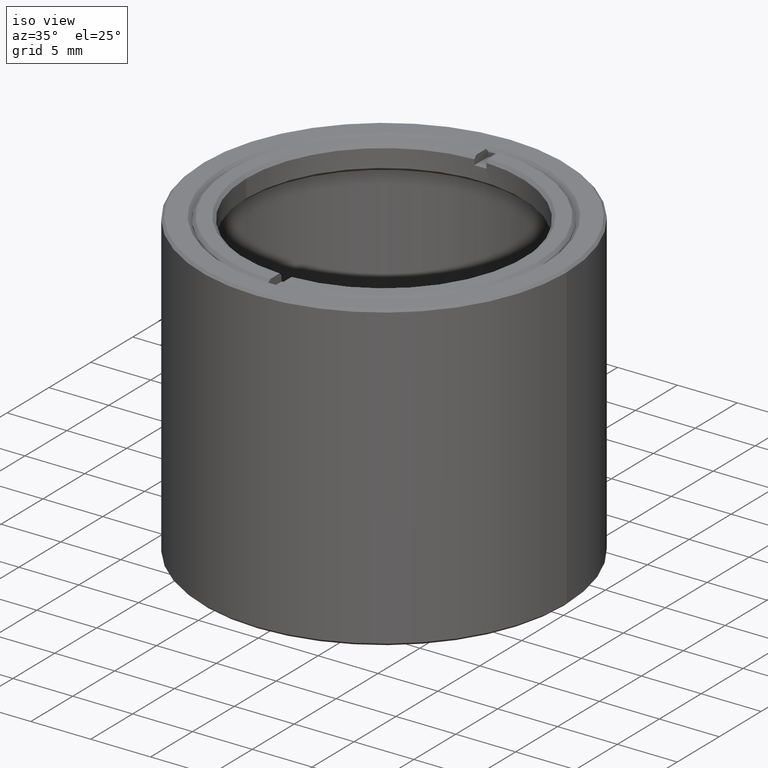
[diagram: clean part render]
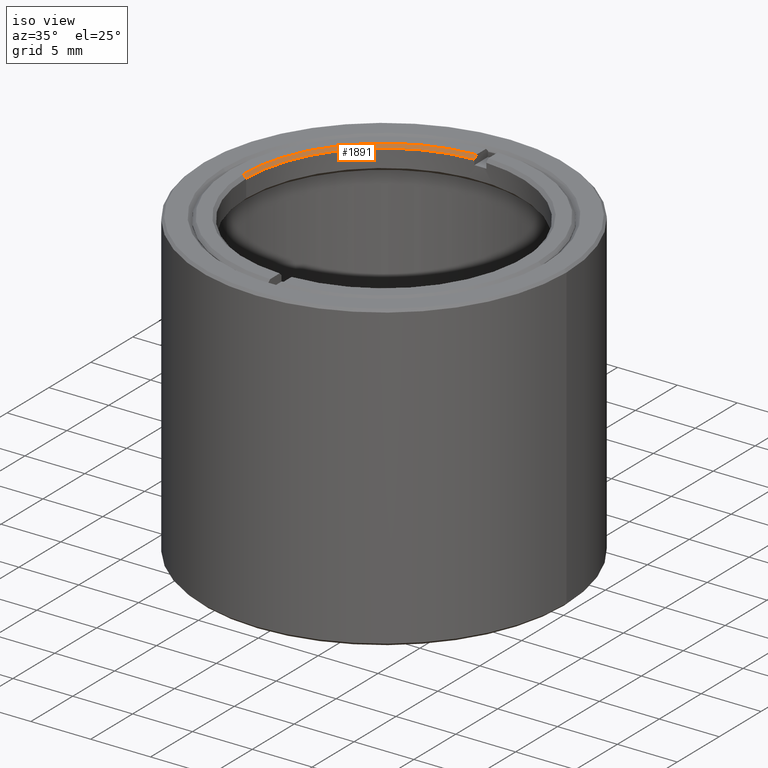
[diagram: same view with one face highlighted and labeled with its STEP entity id]
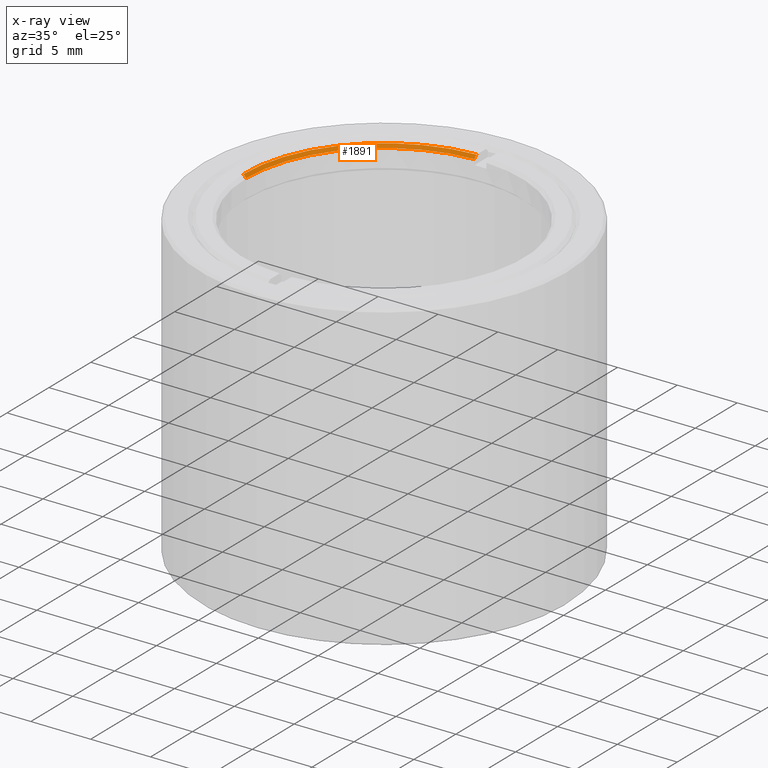
[diagram: x-ray of the same camera — body ghosted, the highlighted face saturated]
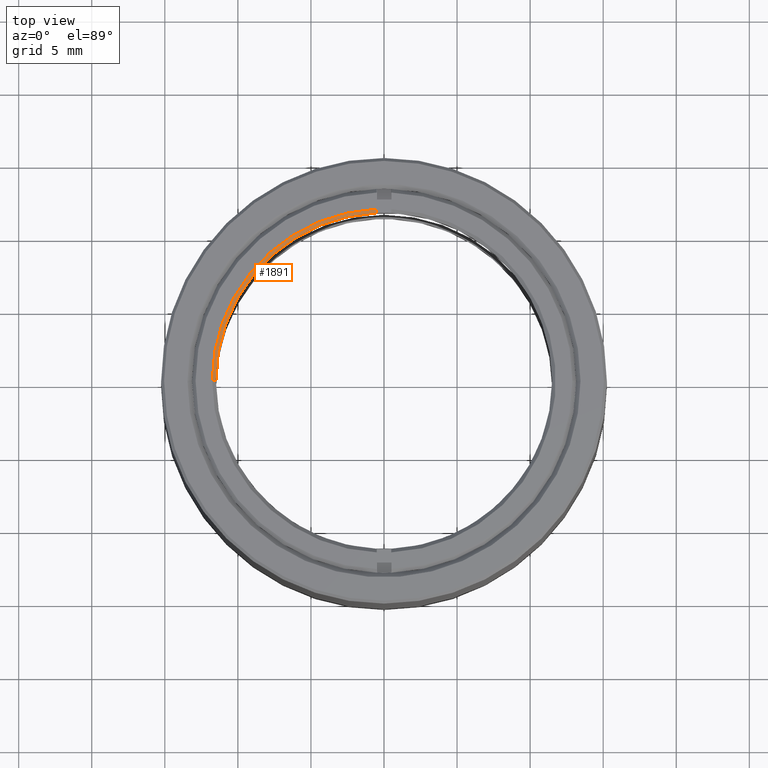
[diagram: same view with one face highlighted and labeled with its STEP entity id]
A machine part, iso view. The second image highlights one B-rep face of the part: STEP entity #1891.
The next image is the same camera in x-ray: the body ghosted, the highlighted face saturated — about 0% of this face is hidden behind the body in this view.
A second angle (top view) of the same face is appended — the face is thin or edge-on in the first view.
In plain terms, the highlighted conical surface has half-angle 45 deg.
Its self-contained STEP definition (entity closure, byte-faithful):
#3 = AXIS2_PLACEMENT_3D ( 'NONE', #1719, #1536, #2480 ) ;
#50 = DIRECTION ( 'NONE',  ( -1.224646799147355179E-16, -7.395570986447007571E-32, 1.000000000000000000 ) ) ;
#153 = DIRECTION ( 'NONE',  ( -0.7071067811865506814, -8.659560562354975999E-17, 0.7071067811865443531 ) ) ;
#175 = ORIENTED_EDGE ( 'NONE', *, *, #1721, .F. ) ;
#176 = VERTEX_POINT ( 'NONE', #1903 ) ;
#210 = EDGE_CURVE ( 'NONE', #176, #450, #213, .T. ) ;
#212 = EDGE_CURVE ( 'NONE', #699, #176, #810, .T. ) ;
#213 = LINE ( 'NONE', #2291, #367 ) ;
#256 = ORIENTED_EDGE ( 'NONE', *, *, #1992, .F. ) ;
#289 = CARTESIAN_POINT ( 'NONE',  ( -0.5000000000000012212, 11.57704085897316126, -6.516667506019577338 ) ) ;
#367 = VECTOR ( 'NONE', #153, 1000.000000000000000 ) ;
#409 = B_SPLINE_CURVE_WITH_KNOTS ( 'NONE', 3,
 ( #719, #1693, #289, #1665 ),
 .UNSPECIFIED., .F., .F.,
 ( 4, 4 ),
 ( 0.01995356277718629209, 0.02030727983553809804 ),
 .UNSPECIFIED. ) ;
#447 = DIRECTION ( 'NONE',  ( -1.000000000000000000, -1.224646799147353207E-16, -1.507865162307626328E-16 ) ) ;
#450 = VERTEX_POINT ( 'NONE', #1793 ) ;
#565 = AXIS2_PLACEMENT_3D ( 'NONE', #1046, #50, #447 ) ;
#699 = VERTEX_POINT ( 'NONE', #2218 ) ;
#705 = ORIENTED_EDGE ( 'NONE', *, *, #210, .F. ) ;
#719 = CARTESIAN_POINT ( 'NONE',  ( -0.5000000000000013323, 11.74386096009313896, -6.350000000000005862 ) ) ;
#738 = CARTESIAN_POINT ( 'NONE',  ( 7.776507174585717801E-16, 1.131830509717493429E-30, -6.350000000000005862 ) ) ;
#810 = CIRCLE ( 'NONE', #3, 11.50449999999998951 ) ;
#998 = CONICAL_SURFACE ( 'NONE', #565, 11.50449999999998951, 0.7853981633974517207 ) ;
#1046 = CARTESIAN_POINT ( 'NONE',  ( 8.082668874372534964E-16, 3.614585319625988684E-31, -6.599999999999997868 ) ) ;
#1156 = EDGE_LOOP ( 'NONE', ( #705, #1798, #256, #175 ) ) ;
#1233 = AXIS2_PLACEMENT_3D ( 'NONE', #738, #1914, #1907 ) ;
#1384 = VERTEX_POINT ( 'NONE', #1449 ) ;
#1449 = CARTESIAN_POINT ( 'NONE',  ( -0.5000000000000013323, 11.74386096009313896, -6.350000000000005862 ) ) ;
#1536 = DIRECTION ( 'NONE',  ( -1.224646799147355179E-16, -7.395570986447007571E-32, 1.000000000000000000 ) ) ;
#1612 = CIRCLE ( 'NONE', #1233, 11.75449999999999129 ) ;
#1665 = CARTESIAN_POINT ( 'NONE',  ( -0.5000000000000013323, 11.49362955075548243, -6.600000000000001421 ) ) ;
#1693 = CARTESIAN_POINT ( 'NONE',  ( -0.5000000000000013323, 11.66045131090377041, -6.433334154818169281 ) ) ;
#1719 = CARTESIAN_POINT ( 'NONE',  ( 8.082668874372534964E-16, 3.614585319625988684E-31, -6.599999999999997868 ) ) ;
#1721 = EDGE_CURVE ( 'NONE', #450, #1384, #1612, .T. ) ;
#1765 = FACE_OUTER_BOUND ( 'NONE', #1156, .T. ) ;
#1793 = CARTESIAN_POINT ( 'NONE',  ( -11.75449999999998418, -1.439511080057754083E-15, -6.350000000000007638 ) ) ;
#1798 = ORIENTED_EDGE ( 'NONE', *, *, #212, .F. ) ;
#1891 = ADVANCED_FACE ( 'NONE', ( #1765 ), #998, .F. ) ;
#1903 = CARTESIAN_POINT ( 'NONE',  ( -11.50449999999999839, -1.424202995068411006E-15, -6.599999999999999645 ) ) ;
#1907 = DIRECTION ( 'NONE',  ( -1.000000000000000000, -1.224646799147353454E-16, -1.475795206922292275E-16 ) ) ;
#1914 = DIRECTION ( 'NONE',  ( 1.224646799147355179E-16, 7.395570986447007571E-32, -1.000000000000000000 ) ) ;
#1992 = EDGE_CURVE ( 'NONE', #1384, #699, #409, .T. ) ;
#2218 = CARTESIAN_POINT ( 'NONE',  ( -0.5000000000000013323, 11.49362955075548243, -6.600000000000001421 ) ) ;
#2291 = CARTESIAN_POINT ( 'NONE',  ( -11.50449999999998951, -1.408894910079070887E-15, -6.599999999999999645 ) ) ;
#2480 = DIRECTION ( 'NONE',  ( -1.000000000000000000, -1.224646799147353207E-16, -1.507865162307626328E-16 ) ) ;